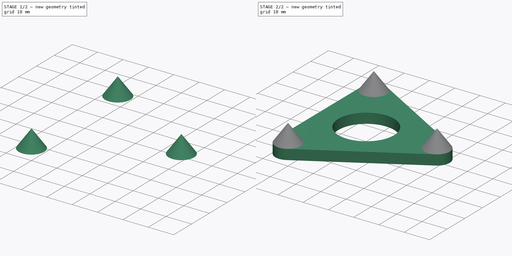
[diagram: build sequence overview — one tinted view per stage of 2, left to right]
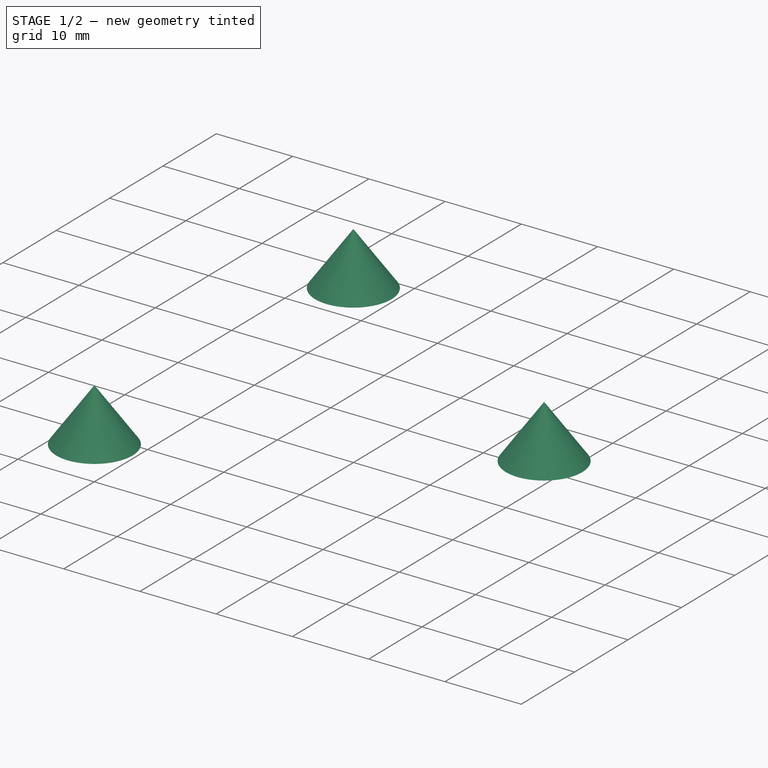
[diagram: stage 1 of 2 — iso view after this stage's code; geometry added in this stage tinted green]
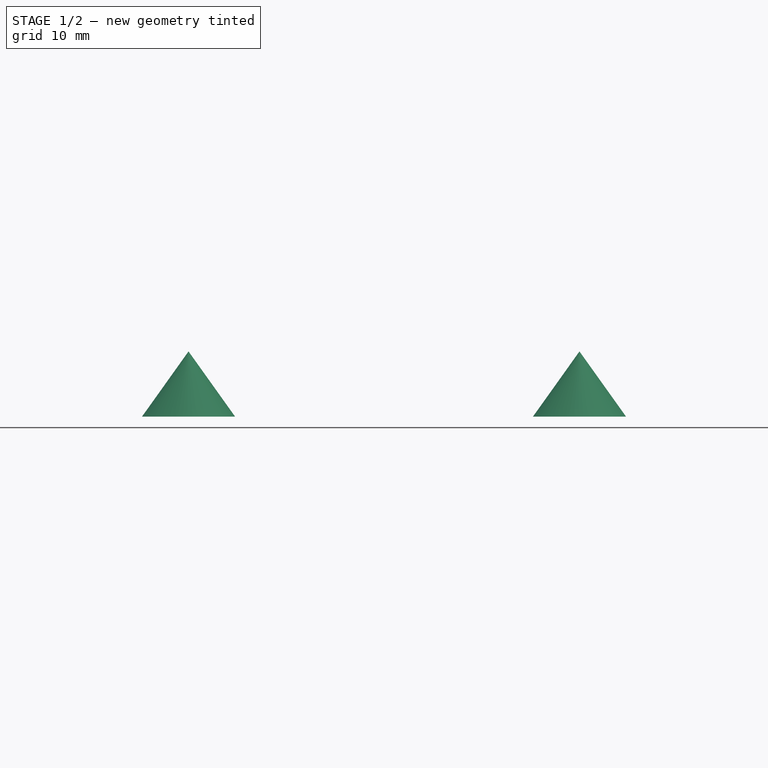
[diagram: stage 1 of 2 — front view after this stage's code; geometry added in this stage tinted green]
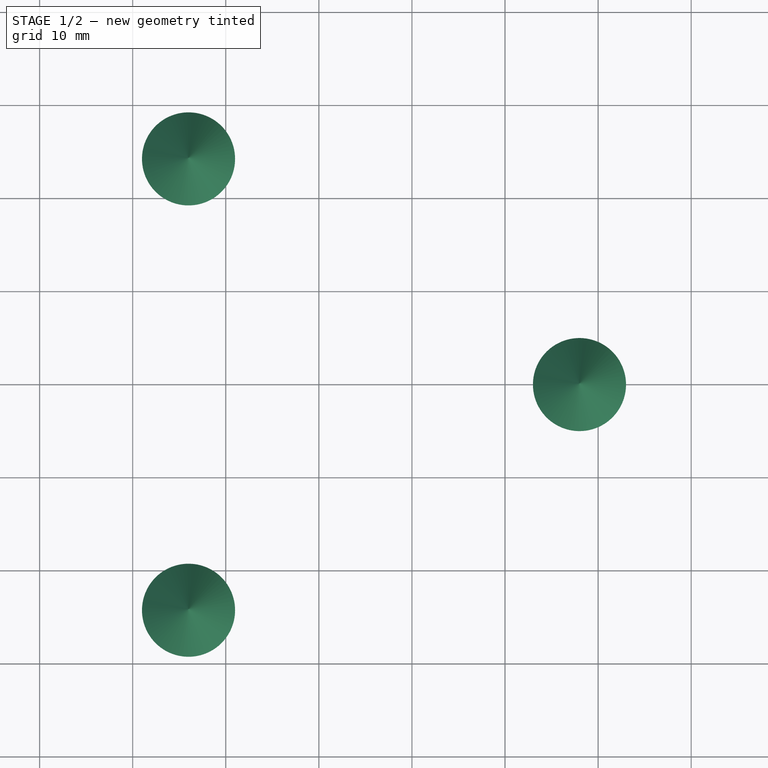
[diagram: stage 1 of 2 — top view after this stage's code; geometry added in this stage tinted green]
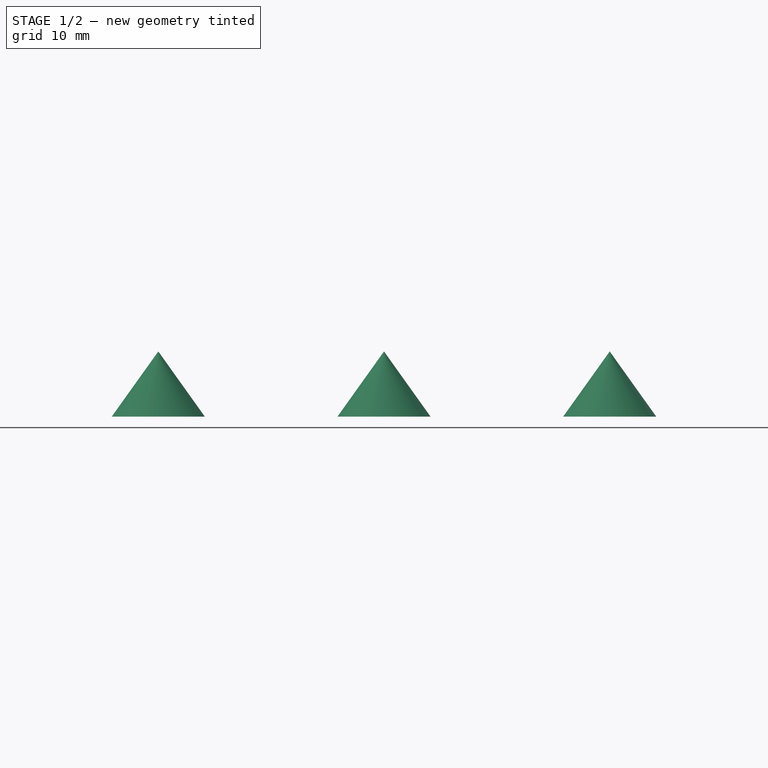
[diagram: stage 1 of 2 — right view after this stage's code; geometry added in this stage tinted green]
FCSTD DOCUMENT  (FreeCAD 0.20R29603 (Git))
Label: NC1-1_Weight_Plate
License: All rights reserved
LicenseURL: http://en.wikipedia.org/wiki/All_rights_reserved
objects: Sketcher::SketchObject×2, Spreadsheet::Sheet×1, Part::Extrusion×1, Part::Revolution×1, Part::FeaturePython×1, Part::MultiFuse×1
note: 5 computed .brp shape members not serialized (recipe doc carries the construction recipe); baked Part::Feature solids carry a one-line shape summary decoded from their .brp

FEATURE [Sketcher::SketchObject] Sketch001
  FullyConstrained = true
  Placement = pos=(0,0,0) rot=(1,0,0;1.5708rad)
  expr: Constraints[6] = <<Param>>.Tip_Height
  expr: Constraints[7] = <<Param>>.Tip_Diameter / 2
  sketch-geometry (3):
    g0: LineSegment StartX=0 StartY=0 StartZ=0 EndX=0 EndY=7 EndZ=0
    g1: LineSegment StartX=0 StartY=0 StartZ=0 EndX=5 EndY=0 EndZ=0
    g2: LineSegment StartX=5 StartY=0 StartZ=0 EndX=-9e-16 EndY=7 EndZ=0
  constraints (8):
    c: Coincident(g0,g-1)
    c: PointOnObject(g0,g-2)
    c: Coincident(g1,g0)
    c: PointOnObject(g1,g-1)
    c: Coincident(g2,g1)
    c: Coincident(g2,g0)
    c: Distance(g0) = 7
    c: Distance(g1) = 5
FEATURE [Part::Revolution] Revolve
  Angle = 360
  Axis = (0,0,1)
  Base = (0,0,4)
  FaceMakerClass = Part::FaceMakerBullseye
  Solid = true
  Source = -> Sketch001
  Symmetric = false
  expr: .Base.x = 0
  expr: .Base.z = <<Param>>.Base_Height
FEATURE [Part::FeaturePython] Array  # Draft array (typed FeaturePython)
  AlwaysSyncPlacement = false
  Angle = 360
  ArrayType = 1
  Axis = (0,0,1)
  Base = -> Revolve
  Center = (-28,0,0)
  Count = 3
  ExpandArray = false
  Fuse = false
  IntervalAxis = (0,0,0)
  IntervalX = (50,0,0)
  IntervalY = (0,50,0)
  IntervalZ = (0,0,50)
  NumberCircles = 3
  NumberPolar = 3
  NumberX = 2
  NumberY = 2
  NumberZ = 1
  Placement = pos=(28,0,4) rot=(0,0,1;0rad)
  PlacementList = 3 placements: [(0,0,0),(-42,24.2487,0),(-42,-24.2487,0)]
  RadialDistance = 50
  ScaleList = (3) [(1,1,1),(1,1,1),(1,1,1)]
  Symmetry = 1
  TangentialDistance = 25
  expr: .Center.x = -<<Param>>.Tip_Radius
  expr: .Placement.Base.z = <<Param>>.Base_Height
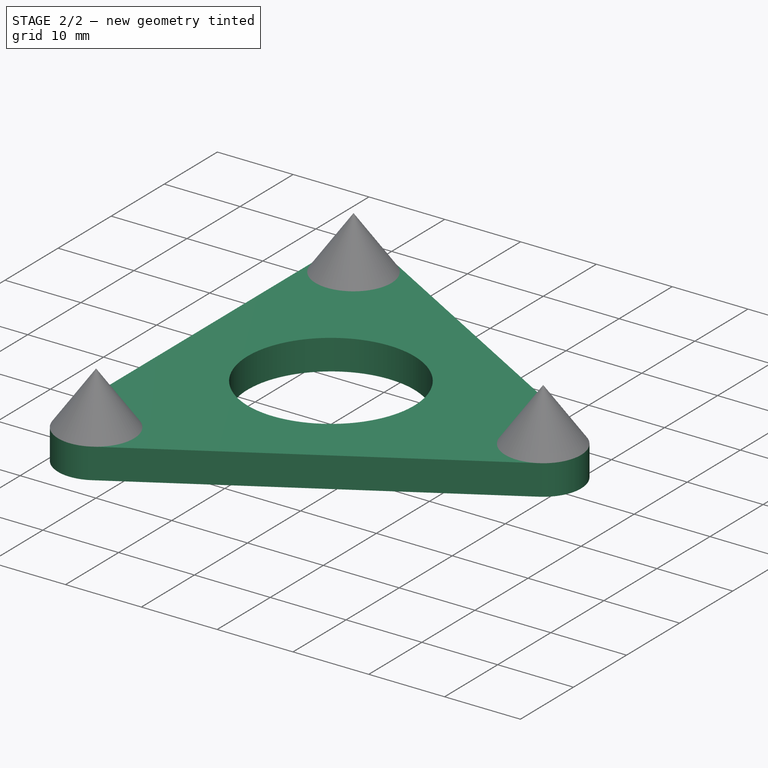
[diagram: stage 2 of 2 — iso view after this stage's code; geometry added in this stage tinted green]
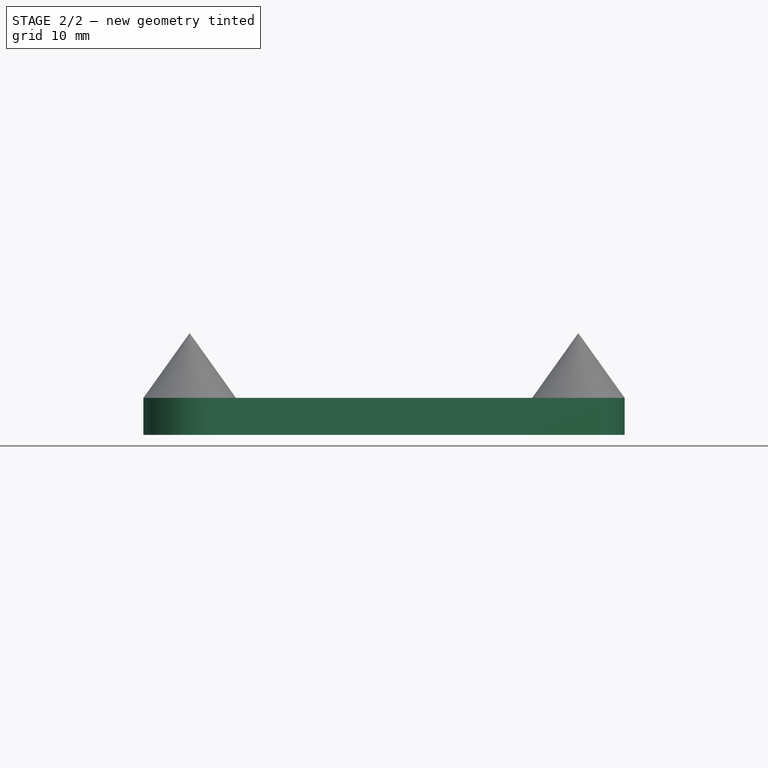
[diagram: stage 2 of 2 — front view after this stage's code; geometry added in this stage tinted green]
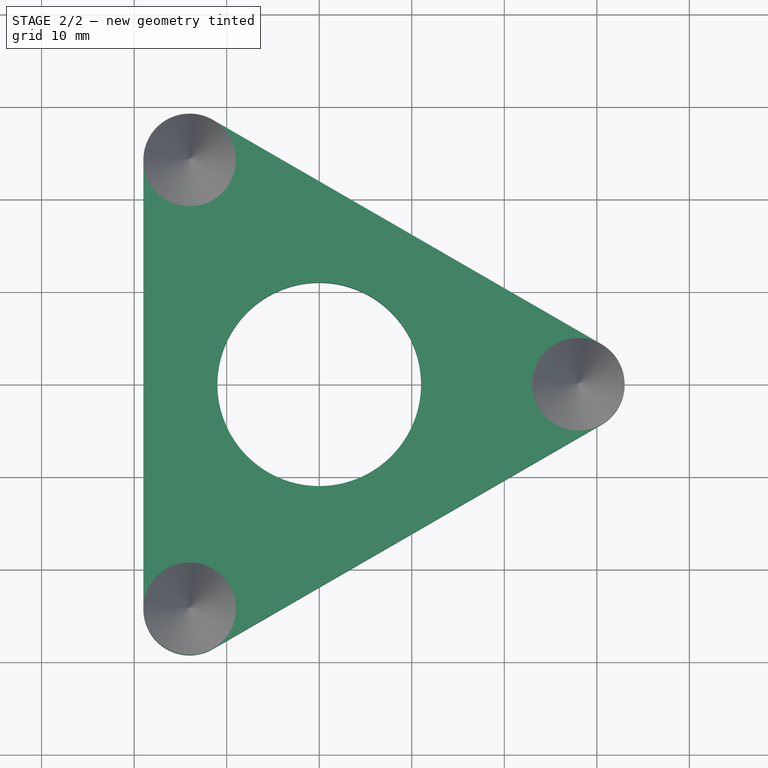
[diagram: stage 2 of 2 — top view after this stage's code; geometry added in this stage tinted green]
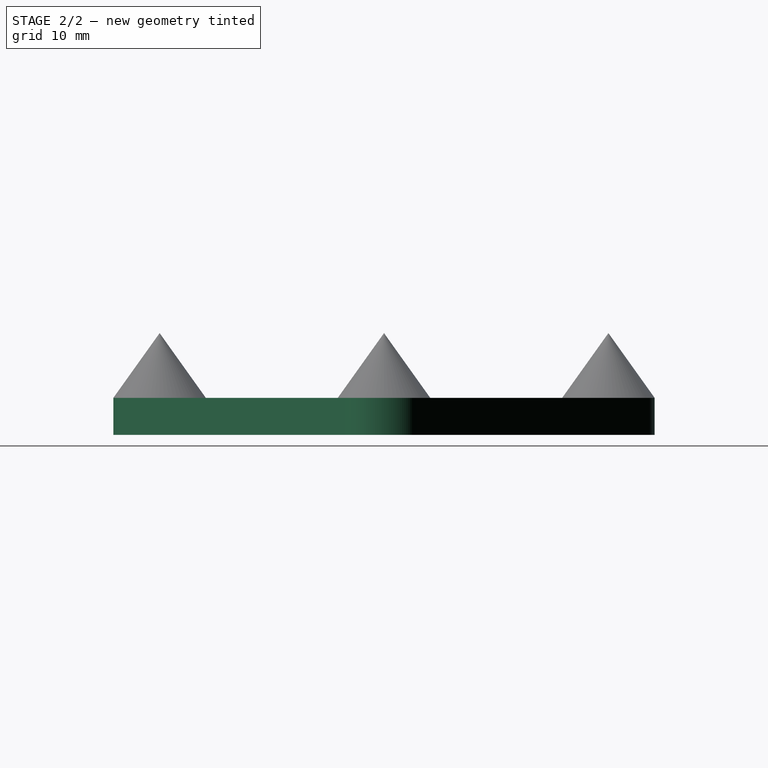
[diagram: stage 2 of 2 — right view after this stage's code; geometry added in this stage tinted green]
FEATURE [Spreadsheet::Sheet] Spreadsheet  label="Param"
  cells = A1=Base_Opening_Diameter; B1(Base_Opening_Diameter)=22; A2=Base_Height; B2(Base_Height)=4; A3=Tip_Radius; B3(Tip_Radius)=28; A4=Tip_Height; B4(Tip_Height)=7; A5=Tip_Diameter; B5(Tip_Diameter)=10
FEATURE [Sketcher::SketchObject] Sketch
  FullyConstrained = true
  expr: Constraints[20] = <<Param>>.Tip_Diameter
  expr: Constraints[22] = <<Param>>.Base_Opening_Diameter
  expr: Constraints[4] = <<Param>>.Tip_Radius
  expr: Constraints[5] = <<Param>>.Tip_Radius
  expr: Constraints[6] = <<Param>>.Tip_Radius
  sketch-geometry (10):
    g0: LineSegment StartX=28 StartY=1.07e-14 StartZ=0 EndX=-14 EndY=24.2487 EndZ=0
    g1: LineSegment StartX=-14 StartY=24.2487 StartZ=0 EndX=-14 EndY=-24.2487 EndZ=0
    g2: LineSegment StartX=-14 StartY=-24.2487 StartZ=0 EndX=28 EndY=1.07e-14 EndZ=0
    g3: LineSegment StartX=-19 StartY=24.2487 StartZ=0 EndX=-19 EndY=-24.2487 EndZ=0
    g4: LineSegment StartX=-11.5 StartY=-28.5788 StartZ=0 EndX=30.5 EndY=-4.33013 EndZ=0
    g5: LineSegment StartX=30.5 StartY=4.33013 StartZ=0 EndX=-11.5 EndY=28.5788 EndZ=0
    g6: ArcOfCircle CenterX=-14 CenterY=24.2487 CenterZ=0 NormalX=0 NormalY=0 NormalZ=1 AngleXU=0 Radius=5 StartAngle=1.0472 EndAngle=3.14159
    g7: ArcOfCircle CenterX=-14 CenterY=-24.2487 CenterZ=0 NormalX=0 NormalY=0 NormalZ=1 AngleXU=0 Radius=5 StartAngle=3.14159 EndAngle=5.23599
    g8: ArcOfCircle CenterX=28 CenterY=1.07e-14 CenterZ=0 NormalX=0 NormalY=0 NormalZ=1 AngleXU=0 Radius=5 StartAngle=5.23599 EndAngle=7.33038
    g9: Circle CenterX=0 CenterY=0 CenterZ=0 NormalX=0 NormalY=0 NormalZ=1 AngleXU=0 Radius=11
  constraints (23):
    c: Coincident(g1,g0)
    c: Vertical(g1)
    c: Coincident(g2,g1)
    c: Coincident(g2,g0)
    c: Distance(g-1,g0) = 28
    c: Distance(g-1,g0) = 28
    c: Distance(g-1,g1) = 28
    c: Equal(g0,g2)
    c: Equal(g1,g0)
    c: Vertical(g3)
    c: Tangent(g3,g6) = -1.5708
    c: Tangent(g5,g6) = -1.5708
    c: Tangent(g4,g7) = -1.5708
    c: Tangent(g3,g7) = -1.5708
    c: Tangent(g5,g8) = -1.5708
    c: Tangent(g4,g8) = -1.5708
    c: Coincident(g6,g0)
    c: Coincident(g8,g0)
    c: Coincident(g7,g1)
    c: Equal(g7,g8)
    c: Diameter(g7) = 10
    c: Coincident(g9,g-1)
    c: Diameter(g9) = 22
FEATURE [Part::Extrusion] Extrude
  Base = -> Sketch
  Dir = (0,0,1)
  DirMode = 2
  FaceMakerClass = Part::FaceMakerBullseye
  LengthFwd = 4
  LengthRev = 0
  Solid = true
  Symmetric = false
  expr: LengthFwd = Spreadsheet.Base_Height
FEATURE [Part::MultiFuse] Fusion
  Shapes = -> [Extrude,Array]
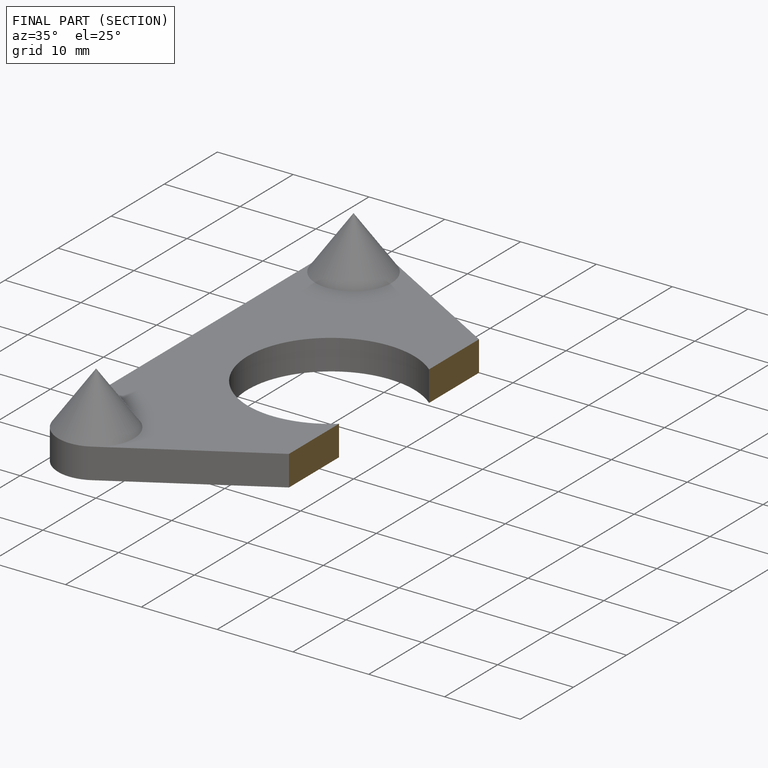
[diagram: finished part — half-section view (interior)]
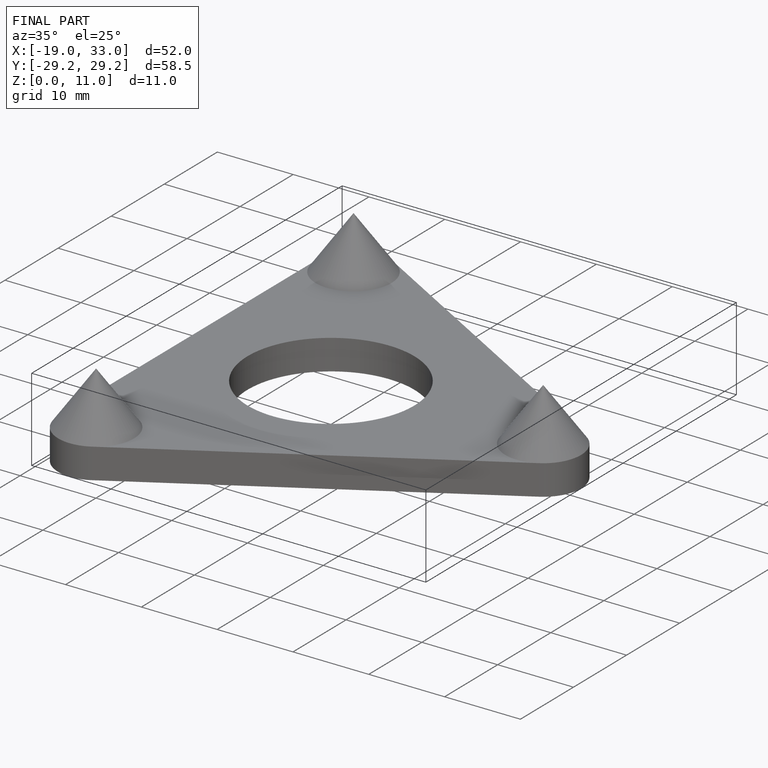
[diagram: finished part — iso view with bounding-box wireframe]
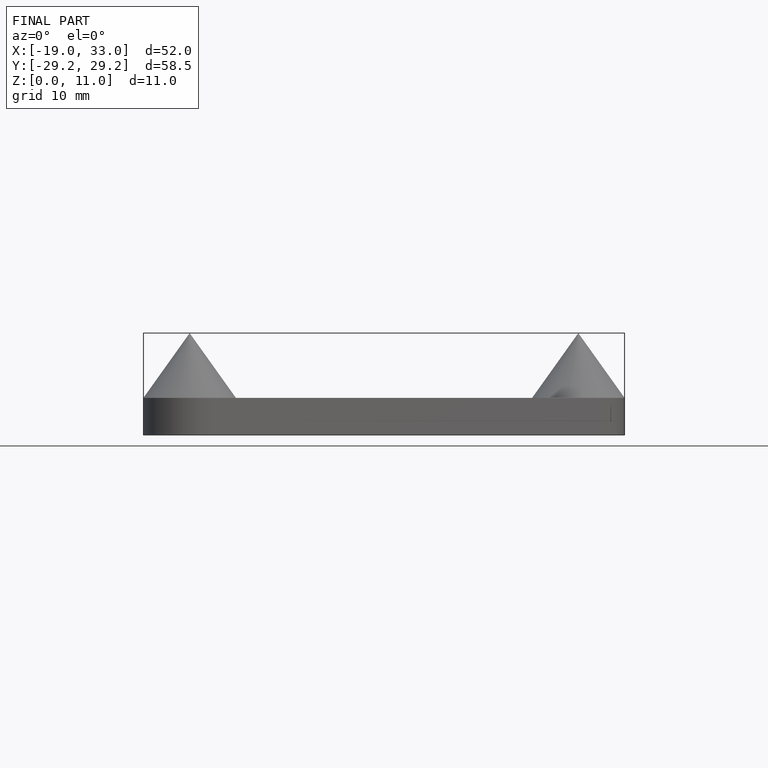
[diagram: finished part — front view with bounding-box wireframe]
